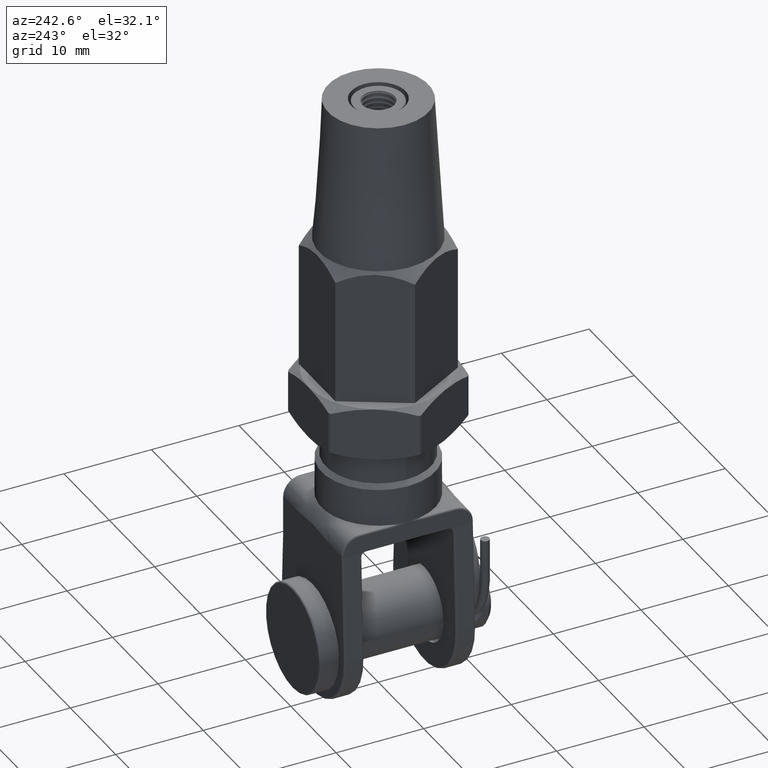
[diagram: clean part render]
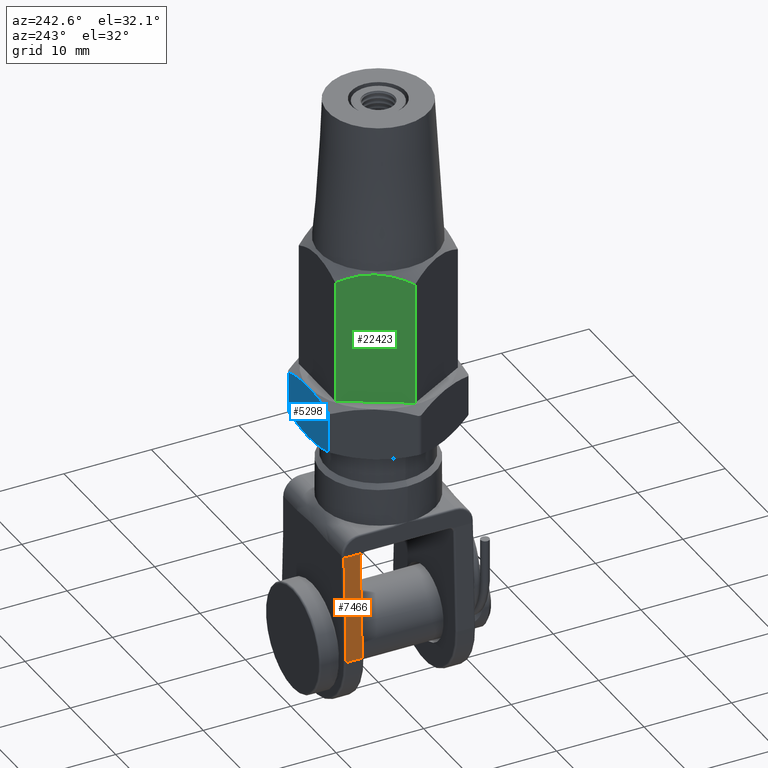
[diagram: same view with three faces highlighted in distinct colors, each labeled with its STEP entity id]
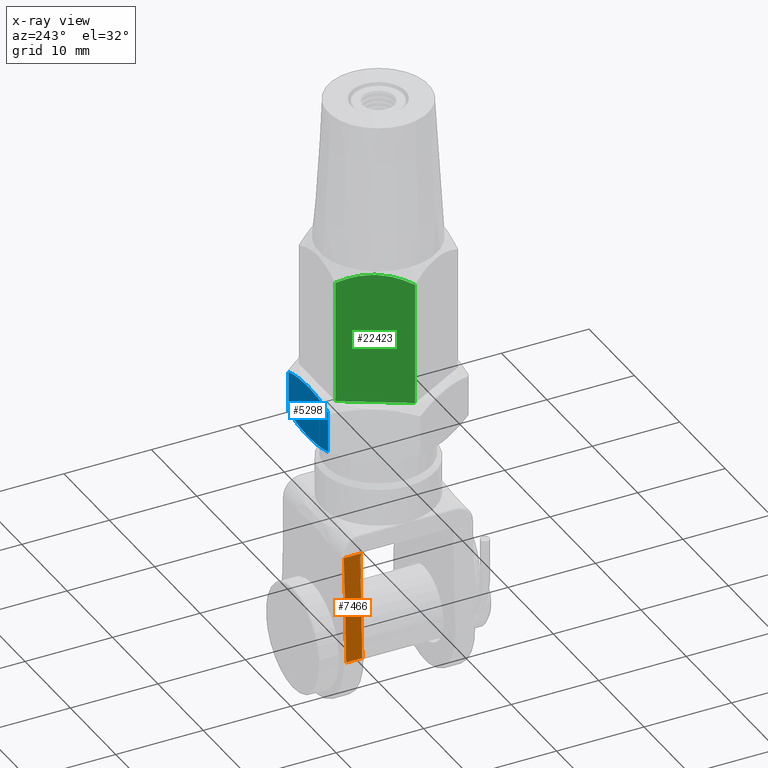
[diagram: x-ray of the same camera — body ghosted, the three highlighted faces saturated]
A machine part, auxiliary view with three faces highlighted in distinct colors.
The next image is the same camera in x-ray (body ghosted, the three faces saturated) — at least one of them is partly hidden behind the body in this view.
Their STEP definitions:

[orange] entity #7466 — the highlighted planar face has unit normal (0.9992, 0, -0.0404).
#1553 = ORIENTED_EDGE ( 'NONE', *, *, #7732, .T. ) ;
#1587 = DIRECTION ( 'NONE',  ( -0.0000000000000000000, -1.000000000000000000, -0.0000000000000000000 ) ) ;
#2194 = ORIENTED_EDGE ( 'NONE', *, *, #12191, .T. ) ;
#2814 = CARTESIAN_POINT ( 'NONE',  ( -6.520229066780711200, 5.450000000000000200, -6.999999999999997300 ) ) ;
#3650 = DIRECTION ( 'NONE',  ( -0.0000000000000000000, -1.000000000000000000, -0.0000000000000000000 ) ) ;
#3855 = ORIENTED_EDGE ( 'NONE', *, *, #6776, .T. ) ;
#4078 = CARTESIAN_POINT ( 'NONE',  ( -6.519901962269233100, 5.450000000000000200, -6.991914987601151500 ) ) ;
#4607 = VECTOR ( 'NONE', #14337, 999.9999999999998900 ) ;
#4851 = LINE ( 'NONE', #7300, #5396 ) ;
#5396 = VECTOR ( 'NONE', #3650, 1000.000000000000000 ) ;
#5750 = AXIS2_PLACEMENT_3D ( 'NONE', #18609, #8163, #6335 ) ;
#6335 = DIRECTION ( 'NONE',  ( -0.04042506199423839100, 0.0000000000000000000, -0.9991825730880028500 ) ) ;
#6558 = CARTESIAN_POINT ( 'NONE',  ( -6.500000000000000900, 5.248015707556859000, -6.500000000000000000 ) ) ;
#6776 = EDGE_CURVE ( 'NONE', #8152, #20365, #9809, .T. ) ;
#7247 = ORIENTED_EDGE ( 'NONE', *, *, #14128, .T. ) ;
#7300 = CARTESIAN_POINT ( 'NONE',  ( -6.994278011616017900, 7.500000000000000000, -18.71702456604033000 ) ) ;
#7466 = ADVANCED_FACE ( 'NONE', ( #13063 ), #18682, .F. ) ;
#7732 = EDGE_CURVE ( 'NONE', #20365, #19237, #4851, .T. ) ;
#8152 = VERTEX_POINT ( 'NONE', #22580 ) ;
#8163 = DIRECTION ( 'NONE',  ( 0.9991825730880028500, 0.0000000000000000000, -0.04042506199423839100 ) ) ;
#8352 = VERTEX_POINT ( 'NONE', #4078 ) ;
#9147 = ORIENTED_EDGE ( 'NONE', *, *, #18660, .F. ) ;
#9731 = CARTESIAN_POINT ( 'NONE',  ( -6.519901962269233100, 5.450000000000000200, -6.991914987601151500 ) ) ;
#9809 = LINE ( 'NONE', #12610, #4607 ) ;
#9868 = LINE ( 'NONE', #15641, #17228 ) ;
#12191 = EDGE_CURVE ( 'NONE', #19237, #8352, #21674, .T. ) ;
#12421 = VECTOR ( 'NONE', #14943, 999.9999999999998900 ) ;
#12610 = CARTESIAN_POINT ( 'NONE',  ( -6.994278011616017900, 7.299999999999999800, -18.71702456604033000 ) ) ;
#13063 = FACE_OUTER_BOUND ( 'NONE', #17651, .T. ) ;
#13787 = CARTESIAN_POINT ( 'NONE',  ( -6.994278011616017900, 5.450000000000000200, -18.71702456604033000 ) ) ;
#14128 = EDGE_CURVE ( 'NONE', #8352, #20718, #19693, .T. ) ;
#14337 = DIRECTION ( 'NONE',  ( -0.04042506199423839100, -0.0000000000000000000, -0.9991825730880028500 ) ) ;
#14943 = DIRECTION ( 'NONE',  ( 0.04042506199423839100, 0.0000000000000000000, 0.9991825730880028500 ) ) ;
#15641 = CARTESIAN_POINT ( 'NONE',  ( -6.500000000000000900, 7.500000000000000000, -6.500000000000000000 ) ) ;
#17228 = VECTOR ( 'NONE', #1587, 1000.000000000000000 ) ;
#17651 = EDGE_LOOP ( 'NONE', ( #2194, #7247, #9147, #3855, #1553 ) ) ;
#18109 = CARTESIAN_POINT ( 'NONE',  ( -6.512353347823382600, 5.450000000000002000, -6.805336572302001000 ) ) ;
#18609 = CARTESIAN_POINT ( 'NONE',  ( -6.994278011616017900, 7.500000000000000000, -18.71702456604033000 ) ) ;
#18660 = EDGE_CURVE ( 'NONE', #8152, #20718, #9868, .T. ) ;
#18682 = PLANE ( 'NONE',  #5750 ) ;
#18783 = CARTESIAN_POINT ( 'NONE',  ( -6.500000000000000900, 5.248015707556859000, -6.500000000000000000 ) ) ;
#19237 = VERTEX_POINT ( 'NONE', #13787 ) ;
#19693 =( BOUNDED_CURVE ( )  B_SPLINE_CURVE ( 3, ( #9731, #18109, #22123, #18783 ),
 .UNSPECIFIED., .F., .F. ) 
 B_SPLINE_CURVE_WITH_KNOTS ( ( 4, 4 ),
 ( 1.570796326794897900, 2.350031793396891700 ),
 .UNSPECIFIED. ) 
 CURVE ( )  GEOMETRIC_REPRESENTATION_ITEM ( )  RATIONAL_B_SPLINE_CURVE ( ( 1.000000000000000000, 0.9500362170978308200, 0.9500362170978308200, 1.000000000000000000 ) ) 
 REPRESENTATION_ITEM ( '' )  );
#20365 = VERTEX_POINT ( 'NONE', #20579 ) ;
#20579 = CARTESIAN_POINT ( 'NONE',  ( -6.994278011616017900, 7.299999999999999800, -18.71702456604033000 ) ) ;
#20718 = VERTEX_POINT ( 'NONE', #6558 ) ;
#21674 = LINE ( 'NONE', #2814, #12421 ) ;
#22123 = CARTESIAN_POINT ( 'NONE',  ( -6.505370469377607100, 5.379131020197609000, -6.632741402157206400 ) ) ;
#22580 = CARTESIAN_POINT ( 'NONE',  ( -6.500000000000000900, 7.299999999999999800, -6.500000000000000000 ) ) ;

[blue] entity #5298 — the highlighted planar face has unit normal (-0, -1, 0).
#89 = CARTESIAN_POINT ( 'NONE',  ( 7.296059555223994400, 2.985208350672248200, -3.362854155303666800 ) ) ;
#276 = DIRECTION ( 'NONE',  ( 0.0000000000000000000, -1.000000000000000000, 0.0000000000000000000 ) ) ;
#898 = CARTESIAN_POINT ( 'NONE',  ( 8.738835585725313500, -2.561631382313034300, -0.8638927665328377500 ) ) ;
#1201 = CARTESIAN_POINT ( 'NONE',  ( 6.014103901768243600, -2.885186752460019200, -5.583266480139187100 ) ) ;
#1396 = CARTESIAN_POINT ( 'NONE',  ( 4.763139720814415100, -2.366818401320774300, -7.750000000000003600 ) ) ;
#1557 = EDGE_CURVE ( 'NONE', #1586, #19200, #14510, .T. ) ;
#1586 = VERTEX_POINT ( 'NONE', #12653 ) ;
#2363 = B_SPLINE_CURVE_WITH_KNOTS ( 'NONE', 3,
 ( #2680, #21663, #13301, #13230, #18251, #7807 ),
 .UNSPECIFIED., .F., .F.,
 ( 4, 2, 4 ),
 ( 0.0002975472326987034600, 0.002485628412925428400, 0.004673709593152153100 ),
 .UNSPECIFIED. ) ;
#2680 = CARTESIAN_POINT ( 'NONE',  ( 4.763139720813719600, 2.366818401320390600, -7.750000000001206100 ) ) ;
#3400 = CARTESIAN_POINT ( 'NONE',  ( 8.739678434095838000, 2.561168110950616100, -0.8624329103320214100 ) ) ;
#3834 = ORIENTED_EDGE ( 'NONE', *, *, #22037, .T. ) ;
#3970 = CARTESIAN_POINT ( 'NONE',  ( 9.093266739736611400, 3.000000000000000000, -0.2500000000000042200 ) ) ;
#4275 = VERTEX_POINT ( 'NONE', #9939 ) ;
#4364 = CARTESIAN_POINT ( 'NONE',  ( 4.763139720814413300, 3.000000000000000000, -7.750000000000007100 ) ) ;
#5041 = CARTESIAN_POINT ( 'NONE',  ( 5.116728026455188400, -2.561168110950617000, -7.137567089667984800 ) ) ;
#5224 = CARTESIAN_POINT ( 'NONE',  ( 8.383179019926100000, 2.720368592424065900, -1.479908008542548700 ) ) ;
#5298 = ADVANCED_FACE ( 'NONE', ( #8766 ), #21944, .F. ) ;
#5346 = EDGE_CURVE ( 'NONE', #19200, #4275, #8217, .T. ) ;
#5445 = CARTESIAN_POINT ( 'NONE',  ( 6.928203230275512300, 3.000000000000000000, -4.000000000000004400 ) ) ;
#5567 = VERTEX_POINT ( 'NONE', #18923 ) ;
#6116 = DIRECTION ( 'NONE',  ( -0.0000000000000000000, 1.000000000000000000, -0.0000000000000000000 ) ) ;
#6120 = CARTESIAN_POINT ( 'NONE',  ( 7.660768647960194900, -2.940384295252641300, -2.731159476702211400 ) ) ;
#6573 = CARTESIAN_POINT ( 'NONE',  ( 9.093266739737305900, -2.366818401320390600, -0.2499999999988007600 ) ) ;
#6723 = B_SPLINE_CURVE_WITH_KNOTS ( 'NONE', 3,
 ( #22501, #17496, #89, #7049, #12096, #5224, #3400, #15601 ),
 .UNSPECIFIED., .F., .F.,
 ( 4, 2, 2, 4 ),
 ( 0.004673709593152153100, 0.005763484876759235700, 0.006853260160366317400, 0.009032810727580484200 ),
 .UNSPECIFIED. ) ;
#7049 = CARTESIAN_POINT ( 'NONE',  ( 7.660987509252691100, 2.927775518044763100, -2.730780397823796300 ) ) ;
#7718 = DIRECTION ( 'NONE',  ( 0.5000000000000004400, 0.0000000000000000000, 0.8660254037844383700 ) ) ;
#7807 = CARTESIAN_POINT ( 'NONE',  ( 6.928203230275512300, 3.000000000000000000, -4.000000000000004400 ) ) ;
#8184 = CARTESIAN_POINT ( 'NONE',  ( 6.928203230275512300, -3.000000000000000000, -4.000000000000004400 ) ) ;
#8217 = LINE ( 'NONE', #4364, #17472 ) ;
#8293 = VERTEX_POINT ( 'NONE', #5445 ) ;
#8766 = FACE_OUTER_BOUND ( 'NONE', #18387, .T. ) ;
#9096 = AXIS2_PLACEMENT_3D ( 'NONE', #16551, #11537, #7718 ) ;
#9395 = LINE ( 'NONE', #3970, #21080 ) ;
#9939 = CARTESIAN_POINT ( 'NONE',  ( 4.763139720813719600, 2.366818401320390600, -7.750000000001206100 ) ) ;
#10569 = ORIENTED_EDGE ( 'NONE', *, *, #1557, .T. ) ;
#11537 = DIRECTION ( 'NONE',  ( -0.8660254037844383700, -0.0000000000000000000, 0.5000000000000004400 ) ) ;
#11691 = CARTESIAN_POINT ( 'NONE',  ( 6.195418951298327300, -2.927775518044766700, -5.269219602176210800 ) ) ;
#12096 = CARTESIAN_POINT ( 'NONE',  ( 7.842302558782781000, 2.885186752460017000, -2.416733519860820000 ) ) ;
#12653 = CARTESIAN_POINT ( 'NONE',  ( 6.928203230275512300, -3.000000000000000000, -4.000000000000004400 ) ) ;
#13141 = CARTESIAN_POINT ( 'NONE',  ( 6.928203230275512300, -3.000000000000000000, -4.000000000000004400 ) ) ;
#13214 = CARTESIAN_POINT ( 'NONE',  ( 8.381850948803091200, -2.720893097496189100, -1.482208295203659900 ) ) ;
#13230 = CARTESIAN_POINT ( 'NONE',  ( 6.195637812590824500, 2.940384295252642200, -5.268840523297794400 ) ) ;
#13301 = CARTESIAN_POINT ( 'NONE',  ( 5.474555511747935200, 2.720893097496189100, -6.517791704796350100 ) ) ;
#13582 = EDGE_CURVE ( 'NONE', #5567, #18561, #9395, .T. ) ;
#14510 = B_SPLINE_CURVE_WITH_KNOTS ( 'NONE', 3,
 ( #8184, #20345, #22101, #11691, #1201, #15181, #5041, #1396 ),
 .UNSPECIFIED., .F., .F.,
 ( 4, 2, 2, 4 ),
 ( 0.004673709593152156600, 0.005763484876759239100, 0.006853260160366320800, 0.009032810727580485900 ),
 .UNSPECIFIED. ) ;
#14895 = ORIENTED_EDGE ( 'NONE', *, *, #5346, .T. ) ;
#15181 = CARTESIAN_POINT ( 'NONE',  ( 5.473227440624930800, -2.720368592424067700, -6.520091991457456400 ) ) ;
#15601 = CARTESIAN_POINT ( 'NONE',  ( 9.093266739736613100, 2.366818401320770700, -0.2500000000000029400 ) ) ;
#16551 = CARTESIAN_POINT ( 'NONE',  ( 9.237604307034018800, 3.000000000000000000, -4.437372100868013800E-015 ) ) ;
#17472 = VECTOR ( 'NONE', #6116, 1000.000000000000000 ) ;
#17496 = CARTESIAN_POINT ( 'NONE',  ( 7.111696883042245800, 3.000000000000001800, -3.682179670541619200 ) ) ;
#18155 = CARTESIAN_POINT ( 'NONE',  ( 7.296626899218539500, -3.000000000000000900, -3.361871486679743400 ) ) ;
#18244 = ORIENTED_EDGE ( 'NONE', *, *, #13582, .T. ) ;
#18251 = CARTESIAN_POINT ( 'NONE',  ( 6.559779561332484300, 3.000000000000001800, -4.638128513320266300 ) ) ;
#18386 = EDGE_CURVE ( 'NONE', #18561, #1586, #21101, .T. ) ;
#18387 = EDGE_LOOP ( 'NONE', ( #21719, #18244, #20729, #10569, #14895, #3834 ) ) ;
#18561 = VERTEX_POINT ( 'NONE', #6573 ) ;
#18732 = CARTESIAN_POINT ( 'NONE',  ( 4.763139720814415100, -2.366818401320774300, -7.750000000000003600 ) ) ;
#18923 = CARTESIAN_POINT ( 'NONE',  ( 9.093266739736613100, 2.366818401320770700, -0.2500000000000029400 ) ) ;
#19200 = VERTEX_POINT ( 'NONE', #18732 ) ;
#20345 = CARTESIAN_POINT ( 'NONE',  ( 6.744709577508778900, -3.000000000000002700, -4.317820329458392300 ) ) ;
#20729 = ORIENTED_EDGE ( 'NONE', *, *, #18386, .T. ) ;
#21080 = VECTOR ( 'NONE', #276, 1000.000000000000000 ) ;
#21101 = B_SPLINE_CURVE_WITH_KNOTS ( 'NONE', 3,
 ( #21572, #898, #13214, #6120, #18155, #13141 ),
 .UNSPECIFIED., .F., .F.,
 ( 4, 2, 4 ),
 ( 0.0002975472326987015100, 0.002485628412925428400, 0.004673709593152156600 ),
 .UNSPECIFIED. ) ;
#21460 = EDGE_CURVE ( 'NONE', #8293, #5567, #6723, .T. ) ;
#21572 = CARTESIAN_POINT ( 'NONE',  ( 9.093266739737305900, -2.366818401320390600, -0.2499999999988007600 ) ) ;
#21663 = CARTESIAN_POINT ( 'NONE',  ( 5.117570874825707600, 2.561631382313036100, -7.136107233467166500 ) ) ;
#21719 = ORIENTED_EDGE ( 'NONE', *, *, #21460, .T. ) ;
#21944 = PLANE ( 'NONE',  #9096 ) ;
#22037 = EDGE_CURVE ( 'NONE', #4275, #8293, #2363, .T. ) ;
#22101 = CARTESIAN_POINT ( 'NONE',  ( 6.560346905327030200, -2.985208350672249100, -4.637145844696343400 ) ) ;
#22501 = CARTESIAN_POINT ( 'NONE',  ( 6.928203230275512300, 3.000000000000000000, -4.000000000000004400 ) ) ;

[green] entity #22423 — the highlighted planar face has unit normal (0.866, -0.5, 0).
#499 = CARTESIAN_POINT ( 'NONE',  ( 8.082903768654761100, 8.379888521085749500E-017, 14.16709623134525300 ) ) ;
#629 = CARTESIAN_POINT ( 'NONE',  ( 4.041451884327382300, -6.999999999999999100, 14.16709623134525300 ) ) ;
#1284 = LINE ( 'NONE', #11569, #17673 ) ;
#1316 = DIRECTION ( 'NONE',  ( 0.4999999999999998900, 0.8660254037844387100, 0.0000000000000000000 ) ) ;
#2272 = CARTESIAN_POINT ( 'NONE',  ( 5.699381388933847600, -4.128381862654099300, 15.22088044662090000 ) ) ;
#3902 = LINE ( 'NONE', #18594, #4998 ) ;
#4470 = VERTEX_POINT ( 'NONE', #14292 ) ;
#4642 = EDGE_LOOP ( 'NONE', ( #20726, #6948, #10954, #5620 ) ) ;
#4998 = VECTOR ( 'NONE', #18431, 1000.000000000000000 ) ;
#5620 = ORIENTED_EDGE ( 'NONE', *, *, #21996, .F. ) ;
#5726 = CARTESIAN_POINT ( 'NONE',  ( 4.357220654578267000, -6.453072446481923100, 14.48286500159612400 ) ) ;
#5965 = DIRECTION ( 'NONE',  ( -0.8660254037844387100, 0.4999999999999998300, 0.0000000000000000000 ) ) ;
#6786 = VERTEX_POINT ( 'NONE', #17864 ) ;
#6948 = ORIENTED_EDGE ( 'NONE', *, *, #16548, .T. ) ;
#7966 = EDGE_CURVE ( 'NONE', #4470, #15600, #1284, .T. ) ;
#8047 = DIRECTION ( 'NONE',  ( 0.0000000000000000000, -0.0000000000000000000, -1.000000000000000000 ) ) ;
#8709 = VECTOR ( 'NONE', #8047, 1000.000000000000000 ) ;
#9274 = EDGE_CURVE ( 'NONE', #12766, #6786, #21635, .T. ) ;
#9580 = CARTESIAN_POINT ( 'NONE',  ( 8.082903768654761100, 1.243450658712319800E-016, 15.50000000000000000 ) ) ;
#10923 = CARTESIAN_POINT ( 'NONE',  ( 6.407546963995868900, -2.901803106475449900, 15.25148396273106300 ) ) ;
#10954 = ORIENTED_EDGE ( 'NONE', *, *, #7966, .T. ) ;
#10995 = CARTESIAN_POINT ( 'NONE',  ( 7.765275520783803600, -0.5501482632315778400, 14.48472447921632700 ) ) ;
#11005 = DIRECTION ( 'NONE',  ( -0.4999999999999998300, -0.8660254037844387100, 0.0000000000000000000 ) ) ;
#11569 = CARTESIAN_POINT ( 'NONE',  ( 4.041451884327381400, -6.999999999999999100, 0.0000000000000000000 ) ) ;
#11705 = LINE ( 'NONE', #9580, #8709 ) ;
#12666 = CARTESIAN_POINT ( 'NONE',  ( 5.878334458841432100, -3.818426053403736200, 15.24923430079595300 ) ) ;
#12766 = VERTEX_POINT ( 'NONE', #629 ) ;
#12821 = CARTESIAN_POINT ( 'NONE',  ( 5.351911424995832600, -4.730217494298867300, 15.11557990305788300 ) ) ;
#14292 = CARTESIAN_POINT ( 'NONE',  ( 4.041451884327381400, -6.999999999999999100, 0.0000000000000000000 ) ) ;
#14377 = FACE_OUTER_BOUND ( 'NONE', #4642, .T. ) ;
#14476 = CARTESIAN_POINT ( 'NONE',  ( 7.438231708962878700, -1.116604761606415200, 14.75707473685712600 ) ) ;
#15600 = VERTEX_POINT ( 'NONE', #17806 ) ;
#16548 = EDGE_CURVE ( 'NONE', #12766, #4470, #3902, .T. ) ;
#17673 = VECTOR ( 'NONE', #1316, 1000.000000000000100 ) ;
#17806 = CARTESIAN_POINT ( 'NONE',  ( 8.082903768654761100, 1.243450658712319800E-016, 0.0000000000000000000 ) ) ;
#17864 = CARTESIAN_POINT ( 'NONE',  ( 8.082903768654761100, 8.379888521085749500E-017, 14.16709623134525300 ) ) ;
#18001 = CARTESIAN_POINT ( 'NONE',  ( 5.181773201775137700, -5.024905541226610600, 15.03905029590963900 ) ) ;
#18431 = DIRECTION ( 'NONE',  ( 0.0000000000000000000, -0.0000000000000000000, -1.000000000000000000 ) ) ;
#18594 = CARTESIAN_POINT ( 'NONE',  ( 4.041451884327381400, -6.999999999999999100, 15.50000000000000000 ) ) ;
#19592 = CARTESIAN_POINT ( 'NONE',  ( 4.041451884327382300, -6.999999999999999100, 14.16709623134525300 ) ) ;
#19676 = PLANE ( 'NONE',  #21604 ) ;
#19970 = CARTESIAN_POINT ( 'NONE',  ( 4.041451884327381400, -6.999999999999999100, 15.50000000000000000 ) ) ;
#20726 = ORIENTED_EDGE ( 'NONE', *, *, #9274, .F. ) ;
#21322 = CARTESIAN_POINT ( 'NONE',  ( 4.680111991988583900, -5.893808244763384600, 14.75134614935850800 ) ) ;
#21402 = CARTESIAN_POINT ( 'NONE',  ( 6.754331197248236900, -2.301155195218530300, 15.14464026218349300 ) ) ;
#21604 = AXIS2_PLACEMENT_3D ( 'NONE', #19970, #5965, #11005 ) ;
#21635 = B_SPLINE_CURVE_WITH_KNOTS ( 'NONE', 3,
 ( #19592, #5726, #21322, #18001, #12821, #2272, #12666, #10923, #21402, #14476, #10995, #499 ),
 .UNSPECIFIED., .F., .F.,
 ( 4, 2, 2, 2, 2, 4 ),
 ( 2.544316211745555300E-007, 0.002087583538114674400, 0.003131248091361424200, 0.004174912644608174400, 0.006262241751101673900, 0.008349570857595174300 ),
 .UNSPECIFIED. ) ;
#21996 = EDGE_CURVE ( 'NONE', #6786, #15600, #11705, .T. ) ;
#22423 = ADVANCED_FACE ( 'NONE', ( #14377 ), #19676, .F. ) ;